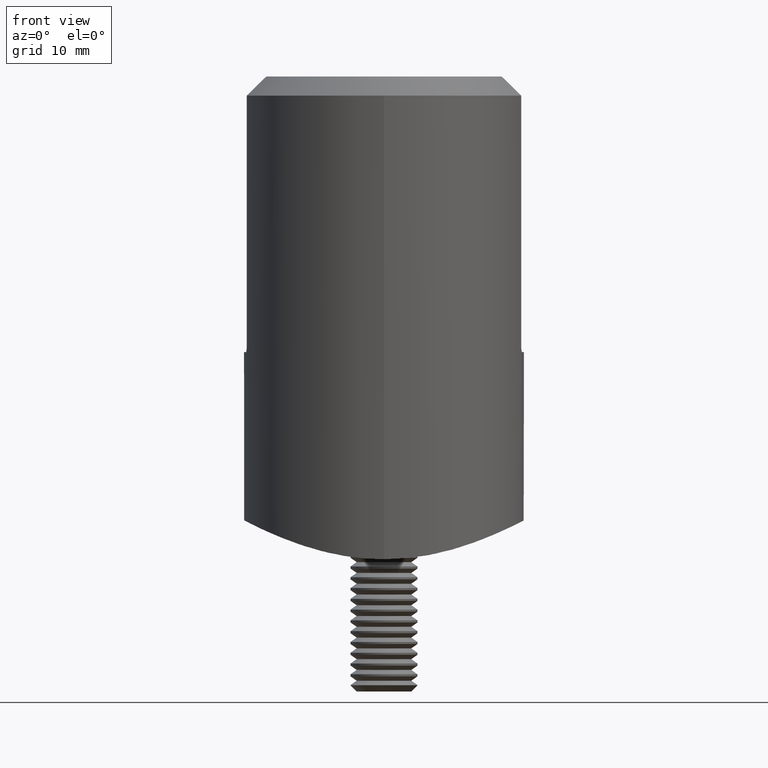
[diagram: clean part render]
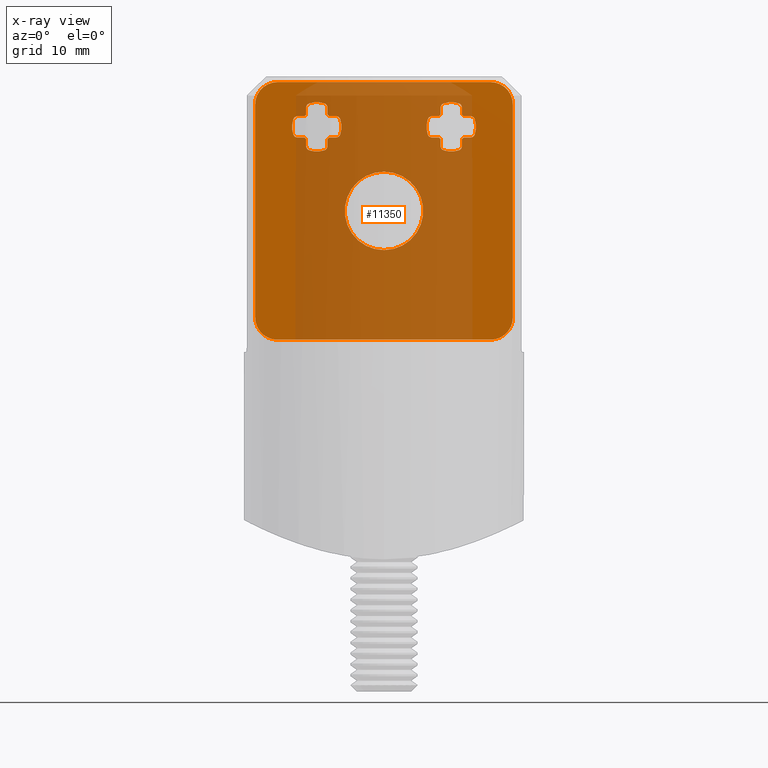
[diagram: x-ray — body ghosted, one internal face saturated and labeled with its STEP entity id]
A machine part, front view, then the same camera in x-ray: the body is ghosted and one INTERNAL B-rep face — a face not visible from any outside direction — is saturated and labeled: STEP entity #11350.
In plain terms, the highlighted planar face has unit normal (0, 1, 0).
Its self-contained STEP definition (entity closure, byte-faithful):
#63 = DIRECTION ( 'NONE',  ( 0.000000000000000000, 1.000000000000000000, 0.000000000000000000 ) ) ;
#143 = DIRECTION ( 'NONE',  ( 0.000000000000000000, 0.000000000000000000, -1.000000000000000000 ) ) ;
#152 = EDGE_CURVE ( 'NONE', #17768, #7842, #23332, .T. ) ;
#270 = CIRCLE ( 'NONE', #14753, 0.3999999999999993006 ) ;
#351 = EDGE_CURVE ( 'NONE', #15955, #3021, #2740, .T. ) ;
#361 = CARTESIAN_POINT ( 'NONE',  ( 6.000000000000002665, 1.000000000000000000, 7.499999999999996447 ) ) ;
#454 = AXIS2_PLACEMENT_3D ( 'NONE', #11058, #5607, #5447 ) ;
#476 = DIRECTION ( 'NONE',  ( -0.000000000000000000, -0.000000000000000000, -1.000000000000000000 ) ) ;
#605 = CARTESIAN_POINT ( 'NONE',  ( 6.550000000000002487, 1.000000000000000000, 9.213913650100257868 ) ) ;
#619 = DIRECTION ( 'NONE',  ( 0.000000000000000000, -1.000000000000000000, -0.000000000000000000 ) ) ;
#646 = CARTESIAN_POINT ( 'NONE',  ( -4.286086349899735914, 1.000000000000000000, 8.449999999999997513 ) ) ;
#681 = LINE ( 'NONE', #23740, #21289 ) ;
#692 = LINE ( 'NONE', #21756, #2717 ) ;
#724 = VERTEX_POINT ( 'NONE', #21250 ) ;
#802 = ORIENTED_EDGE ( 'NONE', *, *, #351, .T. ) ;
#806 = FACE_BOUND ( 'NONE', #2316, .T. ) ;
#907 = VERTEX_POINT ( 'NONE', #14921 ) ;
#930 = CIRCLE ( 'NONE', #11776, 0.4000000000000001887 ) ;
#977 = CIRCLE ( 'NONE', #3917, 2.200000000000000622 ) ;
#1031 = VERTEX_POINT ( 'NONE', #13823 ) ;
#1073 = CARTESIAN_POINT ( 'NONE',  ( -6.950000000000002842, 1.000000000000000000, 8.499999999999994671 ) ) ;
#1135 = VERTEX_POINT ( 'NONE', #1782 ) ;
#1206 = DIRECTION ( 'NONE',  ( -0.000000000000000000, 1.000000000000000000, 0.000000000000000000 ) ) ;
#1209 = DIRECTION ( 'NONE',  ( -0.000000000000000000, 1.000000000000000000, 0.000000000000000000 ) ) ;
#1314 = VECTOR ( 'NONE', #23729, 1000.000000000000000 ) ;
#1381 = VECTOR ( 'NONE', #23610, 1000.000000000000000 ) ;
#1444 = AXIS2_PLACEMENT_3D ( 'NONE', #15421, #13354, #6360 ) ;
#1458 = CIRCLE ( 'NONE', #11847, 0.4000000000000001887 ) ;
#1497 = VERTEX_POINT ( 'NONE', #20976 ) ;
#1548 = VECTOR ( 'NONE', #14081, 1000.000000000000000 ) ;
#1628 = DIRECTION ( 'NONE',  ( -0.000000000000000000, 0.000000000000000000, -1.000000000000000000 ) ) ;
#1695 = DIRECTION ( 'NONE',  ( -0.000000000000000000, 1.000000000000000000, 0.000000000000000000 ) ) ;
#1710 = VERTEX_POINT ( 'NONE', #15487 ) ;
#1723 = DIRECTION ( 'NONE',  ( 0.000000000000000000, -1.000000000000000000, -0.000000000000000000 ) ) ;
#1727 = CIRCLE ( 'NONE', #13010, 2.200000000000000622 ) ;
#1741 = AXIS2_PLACEMENT_3D ( 'NONE', #16836, #15159, #9793 ) ;
#1782 = CARTESIAN_POINT ( 'NONE',  ( 4.904554884986475294, 1.000000000000000000, 8.449999999999997513 ) ) ;
#1953 = CIRCLE ( 'NONE', #23306, 2.200000000000000622 ) ;
#1976 = CIRCLE ( 'NONE', #454, 0.4000000000000001887 ) ;
#1984 = CARTESIAN_POINT ( 'NONE',  ( 5.050000000000002487, 1.000000000000000000, 6.404554884986466412 ) ) ;
#2206 = DIRECTION ( 'NONE',  ( 0.000000000000000000, 0.000000000000000000, -1.000000000000000000 ) ) ;
#2249 = VERTEX_POINT ( 'NONE', #23076 ) ;
#2259 = CARTESIAN_POINT ( 'NONE',  ( 4.286086349899742132, 1.000000000000000000, 6.949999999999995737 ) ) ;
#2285 = CARTESIAN_POINT ( 'NONE',  ( 9.500000000000000000, 1.000000000000000000, 9.499999999999998224 ) ) ;
#2316 = EDGE_LOOP ( 'NONE', ( #10845, #17783, #5789, #7614, #21557, #7415, #16310, #5440, #10051, #5235, #7598, #13632, #13991, #3364, #21801, #2637, #17481, #12154, #10840, #17694, #6635, #19427, #23317, #22947 ) ) ;
#2319 = ORIENTED_EDGE ( 'NONE', *, *, #5698, .T. ) ;
#2362 = DIRECTION ( 'NONE',  ( 0.000000000000000000, 0.000000000000000000, -1.000000000000000000 ) ) ;
#2442 = DIRECTION ( 'NONE',  ( 0.000000000000000000, 0.000000000000000000, -1.000000000000000000 ) ) ;
#2464 = CARTESIAN_POINT ( 'NONE',  ( 7.095445115011708381, 1.000000000000000000, 6.550000000001578115 ) ) ;
#2499 = DIRECTION ( 'NONE',  ( -0.000000000000000000, 1.000000000000000000, 0.000000000000000000 ) ) ;
#2505 = EDGE_CURVE ( 'NONE', #19221, #5168, #17093, .T. ) ;
#2634 = VERTEX_POINT ( 'NONE', #13495 ) ;
#2637 = ORIENTED_EDGE ( 'NONE', *, *, #3102, .T. ) ;
#2671 = DIRECTION ( 'NONE',  ( 0.000000000000000000, 0.000000000000000000, -1.000000000000000000 ) ) ;
#2717 = VECTOR ( 'NONE', #16556, 1000.000000000000000 ) ;
#2740 = LINE ( 'NONE', #16716, #23605 ) ;
#2800 = FACE_BOUND ( 'NONE', #4874, .T. ) ;
#2835 = EDGE_CURVE ( 'NONE', #10113, #14089, #8512, .T. ) ;
#2859 = CARTESIAN_POINT ( 'NONE',  ( 9.499999999999994671, 1.000000000000000000, -11.50000000000000000 ) ) ;
#2878 = CIRCLE ( 'NONE', #10164, 2.000000000000000000 ) ;
#2934 = ORIENTED_EDGE ( 'NONE', *, *, #11098, .F. ) ;
#2940 = CIRCLE ( 'NONE', #11697, 0.4000000000000001887 ) ;
#2968 = CARTESIAN_POINT ( 'NONE',  ( -3.905216649877455204, 1.000000000000000000, 8.172222222222217169 ) ) ;
#3001 = DIRECTION ( 'NONE',  ( 0.000000000000000000, 0.000000000000000000, -1.000000000000000000 ) ) ;
#3021 = VERTEX_POINT ( 'NONE', #16645 ) ;
#3102 = EDGE_CURVE ( 'NONE', #11791, #22283, #5598, .T. ) ;
#3345 = CARTESIAN_POINT ( 'NONE',  ( -5.050000000000002487, 1.000000000000000000, 8.595445115013525594 ) ) ;
#3364 = ORIENTED_EDGE ( 'NONE', *, *, #3947, .T. ) ;
#3431 = CARTESIAN_POINT ( 'NONE',  ( -9.500000000000000000, 1.000000000000000000, 9.499999999999996447 ) ) ;
#3446 = DIRECTION ( 'NONE',  ( -6.263226980648714405E-16, 0.000000000000000000, -1.000000000000000000 ) ) ;
#3486 = EDGE_CURVE ( 'NONE', #11502, #17501, #23606, .T. ) ;
#3504 = CARTESIAN_POINT ( 'NONE',  ( 5.050000000000006928, 1.000000000000000000, 3.162929625227602515E-15 ) ) ;
#3611 = VECTOR ( 'NONE', #10241, 1000.000000000000000 ) ;
#3646 = DIRECTION ( 'NONE',  ( 0.000000000000000000, -1.000000000000000000, -0.000000000000000000 ) ) ;
#3749 = VERTEX_POINT ( 'NONE', #6145 ) ;
#3784 = VERTEX_POINT ( 'NONE', #5450 ) ;
#3851 = CARTESIAN_POINT ( 'NONE',  ( -7.095445115011707493, 1.000000000000000000, 8.449999999998414779 ) ) ;
#3862 = ORIENTED_EDGE ( 'NONE', *, *, #15291, .T. ) ;
#3917 = AXIS2_PLACEMENT_3D ( 'NONE', #22135, #3646, #13108 ) ;
#3947 = EDGE_CURVE ( 'NONE', #9984, #9804, #15928, .T. ) ;
#4004 = VECTOR ( 'NONE', #3446, 1000.000000000000000 ) ;
#4014 = DIRECTION ( 'NONE',  ( 0.000000000000000000, 0.000000000000000000, -1.000000000000000000 ) ) ;
#4051 = DIRECTION ( 'NONE',  ( -1.508455196501571429E-16, 0.000000000000000000, -1.000000000000000000 ) ) ;
#4172 = VERTEX_POINT ( 'NONE', #6732 ) ;
#4254 = EDGE_CURVE ( 'NONE', #6161, #907, #7361, .T. ) ;
#4260 = DIRECTION ( 'NONE',  ( 0.000000000000000000, 0.000000000000000000, -1.000000000000000000 ) ) ;
#4278 = ORIENTED_EDGE ( 'NONE', *, *, #12117, .T. ) ;
#4279 = EDGE_CURVE ( 'NONE', #8878, #12637, #19647, .T. ) ;
#4294 = CARTESIAN_POINT ( 'NONE',  ( -4.904554884988297836, 1.000000000000000000, 8.449999999998414779 ) ) ;
#4299 = EDGE_CURVE ( 'NONE', #3749, #3749, #5591, .T. ) ;
#4330 = DIRECTION ( 'NONE',  ( 0.000000000000000000, -1.000000000000000000, -0.000000000000000000 ) ) ;
#4355 = EDGE_CURVE ( 'NONE', #8878, #11502, #15075, .T. ) ;
#4359 = DIRECTION ( 'NONE',  ( 0.000000000000000000, 0.000000000000000000, -1.000000000000000000 ) ) ;
#4364 = DIRECTION ( 'NONE',  ( -6.263226980648714405E-16, -0.000000000000000000, 1.000000000000000000 ) ) ;
#4431 = CIRCLE ( 'NONE', #1444, 1.450000000000001732 ) ;
#4433 = EDGE_CURVE ( 'NONE', #6485, #5228, #15351, .T. ) ;
#4446 = CARTESIAN_POINT ( 'NONE',  ( 6.949999999998421885, 1.000000000000000000, 6.404554884988290731 ) ) ;
#4504 = EDGE_CURVE ( 'NONE', #9804, #11791, #4431, .T. ) ;
#4594 = CARTESIAN_POINT ( 'NONE',  ( 6.950000000000008171, 1.000000000000000000, 4.352942751550861476E-15 ) ) ;
#4598 = VECTOR ( 'NONE', #11902, 1000.000000000000000 ) ;
#4631 = AXIS2_PLACEMENT_3D ( 'NONE', #18499, #12900, #9373 ) ;
#4648 = VECTOR ( 'NONE', #9880, 1000.000000000000000 ) ;
#4660 = ORIENTED_EDGE ( 'NONE', *, *, #7124, .T. ) ;
#4711 = VECTOR ( 'NONE', #14156, 1000.000000000000000 ) ;
#4765 = AXIS2_PLACEMENT_3D ( 'NONE', #2285, #11647, #2362 ) ;
#4774 = CARTESIAN_POINT ( 'NONE',  ( -6.000000000000002665, 1.000000000000000000, 7.499999999999996447 ) ) ;
#4874 = EDGE_LOOP ( 'NONE', ( #7815, #14663, #17765, #9570, #18141, #9776, #19957, #10071, #13438, #3862, #21719, #6243, #13024, #2319, #2934, #15623, #4278, #7554, #14394, #5076, #20914, #9192, #22528, #6561 ) ) ;
#4942 = AXIS2_PLACEMENT_3D ( 'NONE', #20346, #16514, #21938 ) ;
#4970 = LINE ( 'NONE', #12594, #7589 ) ;
#5061 = VERTEX_POINT ( 'NONE', #2968 ) ;
#5076 = ORIENTED_EDGE ( 'NONE', *, *, #9607, .T. ) ;
#5168 = VERTEX_POINT ( 'NONE', #3345 ) ;
#5176 = CIRCLE ( 'NONE', #21502, 0.3999999999999993006 ) ;
#5214 = CARTESIAN_POINT ( 'NONE',  ( 11.50000000000000000, 1.000000000000000000, 9.499999999999998224 ) ) ;
#5228 = VERTEX_POINT ( 'NONE', #21981 ) ;
#5235 = ORIENTED_EDGE ( 'NONE', *, *, #4433, .T. ) ;
#5291 = VECTOR ( 'NONE', #18061, 1000.000000000000000 ) ;
#5317 = CARTESIAN_POINT ( 'NONE',  ( -6.672222222222226939, 1.000000000000000000, 5.405216649877457868 ) ) ;
#5392 = CARTESIAN_POINT ( 'NONE',  ( 7.713913650100264086, 1.000000000000000000, 8.449999999999997513 ) ) ;
#5402 = AXIS2_PLACEMENT_3D ( 'NONE', #15912, #15754, #23257 ) ;
#5440 = ORIENTED_EDGE ( 'NONE', *, *, #14173, .T. ) ;
#5447 = DIRECTION ( 'NONE',  ( 0.000000000000000000, 0.000000000000000000, -1.000000000000000000 ) ) ;
#5450 = CARTESIAN_POINT ( 'NONE',  ( 8.094783350122543908, 1.000000000000000000, 6.827777777777773061 ) ) ;
#5452 = VERTEX_POINT ( 'NONE', #19121 ) ;
#5534 = ORIENTED_EDGE ( 'NONE', *, *, #9688, .T. ) ;
#5591 = CIRCLE ( 'NONE', #15262, 3.499999999999999556 ) ;
#5598 = LINE ( 'NONE', #19207, #9334 ) ;
#5607 = DIRECTION ( 'NONE',  ( -0.000000000000000000, 1.000000000000000000, 0.000000000000000000 ) ) ;
#5617 = EDGE_CURVE ( 'NONE', #23518, #907, #10726, .T. ) ;
#5698 = EDGE_CURVE ( 'NONE', #1031, #21527, #13901, .T. ) ;
#5763 = LINE ( 'NONE', #9120, #7515 ) ;
#5789 = ORIENTED_EDGE ( 'NONE', *, *, #16688, .T. ) ;
#5793 = CIRCLE ( 'NONE', #14610, 0.4000000000000001887 ) ;
#5853 = CARTESIAN_POINT ( 'NONE',  ( -8.094783350122540355, 1.000000000000000000, 8.172222222222217169 ) ) ;
#5901 = DIRECTION ( 'NONE',  ( 0.000000000000000000, -1.000000000000000000, -0.000000000000000000 ) ) ;
#5945 = EDGE_CURVE ( 'NONE', #12138, #23612, #7304, .T. ) ;
#6113 = CIRCLE ( 'NONE', #4631, 0.4000000000000001887 ) ;
#6145 = CARTESIAN_POINT ( 'NONE',  ( 0.000000000000000000, 1.000000000000000000, 3.499999999999999556 ) ) ;
#6161 = VERTEX_POINT ( 'NONE', #9123 ) ;
#6228 = EDGE_CURVE ( 'NONE', #7842, #17735, #23583, .T. ) ;
#6243 = ORIENTED_EDGE ( 'NONE', *, *, #19580, .T. ) ;
#6295 = CARTESIAN_POINT ( 'NONE',  ( -11.50000000000000355, 1.000000000000000000, -11.49999999999998934 ) ) ;
#6360 = DIRECTION ( 'NONE',  ( 0.000000000000000000, 0.000000000000000000, -1.000000000000000000 ) ) ;
#6485 = VERTEX_POINT ( 'NONE', #1984 ) ;
#6543 = EDGE_CURVE ( 'NONE', #3784, #1497, #977, .T. ) ;
#6561 = ORIENTED_EDGE ( 'NONE', *, *, #6228, .T. ) ;
#6633 = CARTESIAN_POINT ( 'NONE',  ( -4.904554884986473517, 1.000000000000000000, 6.549999999999997158 ) ) ;
#6635 = ORIENTED_EDGE ( 'NONE', *, *, #9719, .T. ) ;
#6712 = CARTESIAN_POINT ( 'NONE',  ( -5.000000000000003553, 1.000000000000000000, 8.449999999999997513 ) ) ;
#6732 = CARTESIAN_POINT ( 'NONE',  ( 6.949999999998421885, 1.000000000000000000, 8.595445115011701276 ) ) ;
#6776 = CIRCLE ( 'NONE', #10442, 0.4000000000000001887 ) ;
#6843 = CARTESIAN_POINT ( 'NONE',  ( -11.50000000000000355, 1.000000000000000000, -9.499999999999987566 ) ) ;
#6869 = DIRECTION ( 'NONE',  ( -0.000000000000000000, 1.000000000000000000, 0.000000000000000000 ) ) ;
#6988 = AXIS2_PLACEMENT_3D ( 'NONE', #22183, #9948, #8124 ) ;
#7124 = EDGE_CURVE ( 'NONE', #7473, #19758, #22701, .T. ) ;
#7125 = LINE ( 'NONE', #12364, #1381 ) ;
#7252 = CARTESIAN_POINT ( 'NONE',  ( -5.450000000000001954, 1.000000000000000000, 9.213913650100261421 ) ) ;
#7304 = CIRCLE ( 'NONE', #16332, 0.4000000000000001887 ) ;
#7339 = CARTESIAN_POINT ( 'NONE',  ( 6.000000000000002665, 1.000000000000000000, 7.499999999999996447 ) ) ;
#7361 = CIRCLE ( 'NONE', #7601, 2.200000000000000622 ) ;
#7406 = CARTESIAN_POINT ( 'NONE',  ( -6.000000000000002665, 1.000000000000000000, 7.499999999999996447 ) ) ;
#7415 = ORIENTED_EDGE ( 'NONE', *, *, #4254, .T. ) ;
#7473 = VERTEX_POINT ( 'NONE', #12739 ) ;
#7481 = CARTESIAN_POINT ( 'NONE',  ( 5.327777777777780166, 1.000000000000000000, 5.405216649877454316 ) ) ;
#7515 = VECTOR ( 'NONE', #21986, 1000.000000000000000 ) ;
#7554 = ORIENTED_EDGE ( 'NONE', *, *, #14009, .T. ) ;
#7564 = AXIS2_PLACEMENT_3D ( 'NONE', #4774, #10398, #14017 ) ;
#7579 = DIRECTION ( 'NONE',  ( 0.000000000000000000, -1.000000000000000000, -0.000000000000000000 ) ) ;
#7589 = VECTOR ( 'NONE', #1628, 1000.000000000000000 ) ;
#7598 = ORIENTED_EDGE ( 'NONE', *, *, #19681, .F. ) ;
#7601 = AXIS2_PLACEMENT_3D ( 'NONE', #16316, #14566, #11111 ) ;
#7614 = ORIENTED_EDGE ( 'NONE', *, *, #20970, .T. ) ;
#7689 = FACE_BOUND ( 'NONE', #23668, .T. ) ;
#7697 = CARTESIAN_POINT ( 'NONE',  ( -7.713913650100259645, 1.000000000000000000, 8.049999999999997158 ) ) ;
#7713 = ORIENTED_EDGE ( 'NONE', *, *, #20209, .T. ) ;
#7764 = DIRECTION ( 'NONE',  ( 0.000000000000000000, 0.000000000000000000, -1.000000000000000000 ) ) ;
#7815 = ORIENTED_EDGE ( 'NONE', *, *, #16506, .F. ) ;
#7826 = DIRECTION ( 'NONE',  ( 0.000000000000000000, -1.000000000000000000, -0.000000000000000000 ) ) ;
#7842 = VERTEX_POINT ( 'NONE', #15752 ) ;
#7914 = DIRECTION ( 'NONE',  ( 0.000000000000000000, -1.000000000000000000, -0.000000000000000000 ) ) ;
#8124 = DIRECTION ( 'NONE',  ( 0.000000000000000000, 0.000000000000000000, -1.000000000000000000 ) ) ;
#8183 = EDGE_CURVE ( 'NONE', #17417, #5061, #930, .T. ) ;
#8342 = VERTEX_POINT ( 'NONE', #22145 ) ;
#8362 = AXIS2_PLACEMENT_3D ( 'NONE', #16634, #14807, #143 ) ;
#8512 = LINE ( 'NONE', #23176, #3611 ) ;
#8541 = DIRECTION ( 'NONE',  ( -0.000000000000000000, 1.000000000000000000, 0.000000000000000000 ) ) ;
#8560 = VERTEX_POINT ( 'NONE', #2859 ) ;
#8670 = VERTEX_POINT ( 'NONE', #19651 ) ;
#8708 = CARTESIAN_POINT ( 'NONE',  ( -6.550000000000002487, 1.000000000000000000, 9.213913650100257868 ) ) ;
#8769 = EDGE_CURVE ( 'NONE', #14568, #1710, #1727, .T. ) ;
#8787 = AXIS2_PLACEMENT_3D ( 'NONE', #16387, #21891, #9024 ) ;
#8878 = VERTEX_POINT ( 'NONE', #15336 ) ;
#8932 = EDGE_CURVE ( 'NONE', #10275, #13300, #13787, .T. ) ;
#9008 = EDGE_CURVE ( 'NONE', #11397, #5452, #4970, .T. ) ;
#9024 = DIRECTION ( 'NONE',  ( 4.336808689942015369E-15, 0.000000000000000000, -1.000000000000000000 ) ) ;
#9120 = CARTESIAN_POINT ( 'NONE',  ( -11.50000000000000000, 1.000000000000000000, 11.49999999999999645 ) ) ;
#9123 = CARTESIAN_POINT ( 'NONE',  ( 3.905216649877460977, 1.000000000000000000, 8.172222222222217169 ) ) ;
#9191 = CARTESIAN_POINT ( 'NONE',  ( -6.000000000000002665, 1.000000000000000000, 7.499999999999996447 ) ) ;
#9192 = ORIENTED_EDGE ( 'NONE', *, *, #14876, .T. ) ;
#9282 = CARTESIAN_POINT ( 'NONE',  ( -5.050000000000002487, 1.000000000000000000, 6.499999999999998224 ) ) ;
#9334 = VECTOR ( 'NONE', #15608, 1000.000000000000000 ) ;
#9351 = CARTESIAN_POINT ( 'NONE',  ( -7.713913650100257868, 1.000000000000000000, 6.549999999999997158 ) ) ;
#9352 = CIRCLE ( 'NONE', #21033, 2.000000000000000000 ) ;
#9373 = DIRECTION ( 'NONE',  ( 0.000000000000000000, 0.000000000000000000, -1.000000000000000000 ) ) ;
#9397 = ORIENTED_EDGE ( 'NONE', *, *, #12829, .T. ) ;
#9570 = ORIENTED_EDGE ( 'NONE', *, *, #4355, .T. ) ;
#9572 = CIRCLE ( 'NONE', #13191, 2.200000000000000622 ) ;
#9607 = EDGE_CURVE ( 'NONE', #16026, #23612, #9572, .T. ) ;
#9688 = EDGE_CURVE ( 'NONE', #8560, #16569, #16573, .T. ) ;
#9719 = EDGE_CURVE ( 'NONE', #14089, #4172, #12284, .T. ) ;
#9776 = ORIENTED_EDGE ( 'NONE', *, *, #17307, .T. ) ;
#9793 = DIRECTION ( 'NONE',  ( -8.673617379884035472E-16, 0.000000000000000000, -1.000000000000000000 ) ) ;
#9804 = VERTEX_POINT ( 'NONE', #4446 ) ;
#9835 = CARTESIAN_POINT ( 'NONE',  ( -6.949999999998421885, 1.000000000000000000, 8.595445115011701276 ) ) ;
#9880 = DIRECTION ( 'NONE',  ( 1.000000000000000000, 0.000000000000000000, 7.542275982507857147E-17 ) ) ;
#9948 = DIRECTION ( 'NONE',  ( 0.000000000000000000, -1.000000000000000000, -0.000000000000000000 ) ) ;
#9984 = VERTEX_POINT ( 'NONE', #17691 ) ;
#10020 = CIRCLE ( 'NONE', #4765, 2.000000000000000000 ) ;
#10051 = ORIENTED_EDGE ( 'NONE', *, *, #18157, .T. ) ;
#10071 = ORIENTED_EDGE ( 'NONE', *, *, #22028, .T. ) ;
#10113 = VERTEX_POINT ( 'NONE', #5392 ) ;
#10124 = EDGE_LOOP ( 'NONE', ( #5534, #11007, #13800, #7713, #4660, #16282, #802, #9397 ) ) ;
#10140 = CARTESIAN_POINT ( 'NONE',  ( -5.999999999999997335, 1.000000000000000000, 7.499999999999998224 ) ) ;
#10164 = AXIS2_PLACEMENT_3D ( 'NONE', #3431, #1695, #20005 ) ;
#10205 = VECTOR ( 'NONE', #22040, 1000.000000000000000 ) ;
#10241 = DIRECTION ( 'NONE',  ( -1.000000000000000000, 0.000000000000000000, 0.000000000000000000 ) ) ;
#10275 = VERTEX_POINT ( 'NONE', #13506 ) ;
#10398 = DIRECTION ( 'NONE',  ( 0.000000000000000000, -1.000000000000000000, -0.000000000000000000 ) ) ;
#10442 = AXIS2_PLACEMENT_3D ( 'NONE', #17249, #2499, #13418 ) ;
#10446 = DIRECTION ( 'NONE',  ( -0.000000000000000000, 1.000000000000000000, 0.000000000000000000 ) ) ;
#10506 = VERTEX_POINT ( 'NONE', #22091 ) ;
#10543 = EDGE_CURVE ( 'NONE', #10113, #1497, #1976, .T. ) ;
#10726 = CIRCLE ( 'NONE', #11898, 0.4000000000000001887 ) ;
#10839 = DIRECTION ( 'NONE',  ( 0.000000000000000000, 0.000000000000000000, -1.000000000000000000 ) ) ;
#10840 = ORIENTED_EDGE ( 'NONE', *, *, #10543, .F. ) ;
#10845 = ORIENTED_EDGE ( 'NONE', *, *, #17470, .F. ) ;
#10941 = VERTEX_POINT ( 'NONE', #16647 ) ;
#10965 = CIRCLE ( 'NONE', #8787, 0.4000000000000001887 ) ;
#11007 = ORIENTED_EDGE ( 'NONE', *, *, #22490, .T. ) ;
#11058 = CARTESIAN_POINT ( 'NONE',  ( 7.713913650100264086, 1.000000000000000000, 8.049999999999997158 ) ) ;
#11098 = EDGE_CURVE ( 'NONE', #10275, #21527, #23391, .T. ) ;
#11111 = DIRECTION ( 'NONE',  ( 0.000000000000000000, 0.000000000000000000, -1.000000000000000000 ) ) ;
#11330 = CARTESIAN_POINT ( 'NONE',  ( 0.000000000000000000, 1.000000000000000000, 0.000000000000000000 ) ) ;
#11350 = ADVANCED_FACE ( 'NONE', ( #806, #12838, #7689, #2800 ), #16935, .F. ) ;
#11397 = VERTEX_POINT ( 'NONE', #13594 ) ;
#11502 = VERTEX_POINT ( 'NONE', #16109 ) ;
#11525 = CIRCLE ( 'NONE', #14024, 1.450000000000001732 ) ;
#11569 = CARTESIAN_POINT ( 'NONE',  ( -5.999999999999997335, 1.000000000000000000, 7.499999999999998224 ) ) ;
#11580 = CARTESIAN_POINT ( 'NONE',  ( 6.000000000000002665, 1.000000000000000000, 7.499999999999996447 ) ) ;
#11647 = DIRECTION ( 'NONE',  ( -0.000000000000000000, 1.000000000000000000, 0.000000000000000000 ) ) ;
#11660 = CARTESIAN_POINT ( 'NONE',  ( -7.095445115013531812, 1.000000000000000000, 6.549999999999996270 ) ) ;
#11697 = AXIS2_PLACEMENT_3D ( 'NONE', #19342, #8541, #15735 ) ;
#11709 = AXIS2_PLACEMENT_3D ( 'NONE', #17096, #15100, #15025 ) ;
#11776 = AXIS2_PLACEMENT_3D ( 'NONE', #18013, #1209, #19760 ) ;
#11791 = VERTEX_POINT ( 'NONE', #2464 ) ;
#11847 = AXIS2_PLACEMENT_3D ( 'NONE', #23075, #10446, #3001 ) ;
#11898 = AXIS2_PLACEMENT_3D ( 'NONE', #2259, #13080, #4014 ) ;
#11902 = DIRECTION ( 'NONE',  ( -0.000000000000000000, -0.000000000000000000, 1.000000000000000000 ) ) ;
#12084 = DIRECTION ( 'NONE',  ( 2.602085213965210642E-15, 0.000000000000000000, -1.000000000000000000 ) ) ;
#12093 = LINE ( 'NONE', #4594, #13258 ) ;
#12117 = EDGE_CURVE ( 'NONE', #13300, #14646, #15096, .T. ) ;
#12138 = VERTEX_POINT ( 'NONE', #9351 ) ;
#12154 = ORIENTED_EDGE ( 'NONE', *, *, #6543, .T. ) ;
#12284 = CIRCLE ( 'NONE', #22658, 1.450000000000001732 ) ;
#12364 = CARTESIAN_POINT ( 'NONE',  ( 0.000000000000000000, 1.000000000000000000, 8.449999999999997513 ) ) ;
#12438 = EDGE_CURVE ( 'NONE', #6161, #2634, #6776, .T. ) ;
#12445 = AXIS2_PLACEMENT_3D ( 'NONE', #9191, #16469, #22213 ) ;
#12524 = DIRECTION ( 'NONE',  ( 0.000000000000000000, 0.000000000000000000, -1.000000000000000000 ) ) ;
#12594 = CARTESIAN_POINT ( 'NONE',  ( 5.050000000000002487, 1.000000000000000000, 8.499999999999994671 ) ) ;
#12637 = VERTEX_POINT ( 'NONE', #23357 ) ;
#12739 = CARTESIAN_POINT ( 'NONE',  ( -9.500000000000000000, 1.000000000000000000, 11.49999999999999645 ) ) ;
#12742 = CARTESIAN_POINT ( 'NONE',  ( 6.950000000000001954, 1.000000000000000000, 9.213913650100257868 ) ) ;
#12762 = VERTEX_POINT ( 'NONE', #12742 ) ;
#12829 = EDGE_CURVE ( 'NONE', #3021, #8560, #9352, .T. ) ;
#12838 = FACE_OUTER_BOUND ( 'NONE', #10124, .T. ) ;
#12900 = DIRECTION ( 'NONE',  ( -0.000000000000000000, 1.000000000000000000, 0.000000000000000000 ) ) ;
#12923 = DIRECTION ( 'NONE',  ( 0.000000000000000000, 0.000000000000000000, -1.000000000000000000 ) ) ;
#12970 = DIRECTION ( 'NONE',  ( 0.000000000000000000, 0.000000000000000000, 1.000000000000000000 ) ) ;
#13010 = AXIS2_PLACEMENT_3D ( 'NONE', #361, #7826, #4260 ) ;
#13024 = ORIENTED_EDGE ( 'NONE', *, *, #21078, .F. ) ;
#13080 = DIRECTION ( 'NONE',  ( -0.000000000000000000, 1.000000000000000000, 0.000000000000000000 ) ) ;
#13108 = DIRECTION ( 'NONE',  ( 0.000000000000000000, 0.000000000000000000, -1.000000000000000000 ) ) ;
#13191 = AXIS2_PLACEMENT_3D ( 'NONE', #22058, #5901, #7764 ) ;
#13258 = VECTOR ( 'NONE', #4364, 1000.000000000000000 ) ;
#13276 = CIRCLE ( 'NONE', #22948, 1.450000000000001732 ) ;
#13300 = VERTEX_POINT ( 'NONE', #9835 ) ;
#13354 = DIRECTION ( 'NONE',  ( 0.000000000000000000, -1.000000000000000000, -0.000000000000000000 ) ) ;
#13379 = DIRECTION ( 'NONE',  ( -0.000000000000000000, 1.000000000000000000, 0.000000000000000000 ) ) ;
#13418 = DIRECTION ( 'NONE',  ( 0.000000000000000000, 0.000000000000000000, -1.000000000000000000 ) ) ;
#13437 = DIRECTION ( 'NONE',  ( -0.000000000000000000, 1.000000000000000000, 0.000000000000000000 ) ) ;
#13438 = ORIENTED_EDGE ( 'NONE', *, *, #8183, .F. ) ;
#13495 = CARTESIAN_POINT ( 'NONE',  ( 4.286086349899742132, 1.000000000000000000, 8.449999999999997513 ) ) ;
#13506 = CARTESIAN_POINT ( 'NONE',  ( -6.950000000000001954, 1.000000000000000000, 9.213913650100257868 ) ) ;
#13594 = CARTESIAN_POINT ( 'NONE',  ( 5.050000000000002487, 1.000000000000000000, 9.213913650100257868 ) ) ;
#13632 = ORIENTED_EDGE ( 'NONE', *, *, #8769, .T. ) ;
#13656 = CARTESIAN_POINT ( 'NONE',  ( 6.000000000000002665, 1.000000000000000000, 7.499999999999996447 ) ) ;
#13787 = LINE ( 'NONE', #1073, #4004 ) ;
#13800 = ORIENTED_EDGE ( 'NONE', *, *, #18938, .T. ) ;
#13823 = CARTESIAN_POINT ( 'NONE',  ( -5.327777777777780166, 1.000000000000000000, 9.594783350122540355 ) ) ;
#13901 = CIRCLE ( 'NONE', #6988, 2.200000000000000622 ) ;
#13952 = CARTESIAN_POINT ( 'NONE',  ( 9.499999999999996447, 1.000000000000000000, -9.500000000000000000 ) ) ;
#13991 = ORIENTED_EDGE ( 'NONE', *, *, #21209, .F. ) ;
#14009 = EDGE_CURVE ( 'NONE', #14646, #16908, #15057, .T. ) ;
#14017 = DIRECTION ( 'NONE',  ( 0.000000000000000000, 0.000000000000000000, -1.000000000000000000 ) ) ;
#14024 = AXIS2_PLACEMENT_3D ( 'NONE', #7339, #1723, #10839 ) ;
#14081 = DIRECTION ( 'NONE',  ( -1.000000000000000000, 0.000000000000000000, 0.000000000000000000 ) ) ;
#14089 = VERTEX_POINT ( 'NONE', #17613 ) ;
#14144 = CIRCLE ( 'NONE', #5402, 0.3999999999999993006 ) ;
#14156 = DIRECTION ( 'NONE',  ( -1.000000000000000000, -0.000000000000000000, -0.000000000000000000 ) ) ;
#14173 = EDGE_CURVE ( 'NONE', #23518, #724, #22471, .T. ) ;
#14185 = CARTESIAN_POINT ( 'NONE',  ( -8.094783350122538579, 1.000000000000000000, 6.827777777777773061 ) ) ;
#14229 = VERTEX_POINT ( 'NONE', #16451 ) ;
#14352 = ORIENTED_EDGE ( 'NONE', *, *, #4299, .F. ) ;
#14394 = ORIENTED_EDGE ( 'NONE', *, *, #15013, .F. ) ;
#14566 = DIRECTION ( 'NONE',  ( 0.000000000000000000, -1.000000000000000000, -0.000000000000000000 ) ) ;
#14568 = VERTEX_POINT ( 'NONE', #7481 ) ;
#14610 = AXIS2_PLACEMENT_3D ( 'NONE', #22567, #15154, #18836 ) ;
#14630 = AXIS2_PLACEMENT_3D ( 'NONE', #7406, #7579, #12923 ) ;
#14646 = VERTEX_POINT ( 'NONE', #3851 ) ;
#14663 = ORIENTED_EDGE ( 'NONE', *, *, #20750, .T. ) ;
#14753 = AXIS2_PLACEMENT_3D ( 'NONE', #605, #13437, #2442 ) ;
#14807 = DIRECTION ( 'NONE',  ( -0.000000000000000000, 1.000000000000000000, 0.000000000000000000 ) ) ;
#14876 = EDGE_CURVE ( 'NONE', #12138, #17768, #692, .T. ) ;
#14921 = CARTESIAN_POINT ( 'NONE',  ( 3.905216649877461421, 1.000000000000000000, 6.827777777777773061 ) ) ;
#14976 = CIRCLE ( 'NONE', #4942, 2.200000000000000622 ) ;
#15013 = EDGE_CURVE ( 'NONE', #16026, #16908, #17023, .T. ) ;
#15025 = DIRECTION ( 'NONE',  ( 0.000000000000000000, 0.000000000000000000, -1.000000000000000000 ) ) ;
#15057 = LINE ( 'NONE', #21417, #4711 ) ;
#15075 = LINE ( 'NONE', #9282, #1314 ) ;
#15096 = CIRCLE ( 'NONE', #12445, 1.450000000000001732 ) ;
#15100 = DIRECTION ( 'NONE',  ( 0.000000000000000000, -1.000000000000000000, -0.000000000000000000 ) ) ;
#15154 = DIRECTION ( 'NONE',  ( -0.000000000000000000, 1.000000000000000000, 0.000000000000000000 ) ) ;
#15159 = DIRECTION ( 'NONE',  ( -0.000000000000000000, 1.000000000000000000, 0.000000000000000000 ) ) ;
#15262 = AXIS2_PLACEMENT_3D ( 'NONE', #18168, #63, #12970 ) ;
#15291 = EDGE_CURVE ( 'NONE', #17417, #19221, #15585, .T. ) ;
#15336 = CARTESIAN_POINT ( 'NONE',  ( -5.050000000000003375, 1.000000000000000000, 5.786086349899735026 ) ) ;
#15351 = LINE ( 'NONE', #3504, #10205 ) ;
#15421 = CARTESIAN_POINT ( 'NONE',  ( 6.000000000000002665, 1.000000000000000000, 7.499999999999996447 ) ) ;
#15487 = CARTESIAN_POINT ( 'NONE',  ( 6.672222222222226939, 1.000000000000000000, 5.405216649877455204 ) ) ;
#15585 = LINE ( 'NONE', #6712, #1548 ) ;
#15608 = DIRECTION ( 'NONE',  ( 1.000000000000000000, -0.000000000000000000, 6.263226980648714405E-16 ) ) ;
#15623 = ORIENTED_EDGE ( 'NONE', *, *, #8932, .T. ) ;
#15650 = VECTOR ( 'NONE', #20426, 1000.000000000000000 ) ;
#15735 = DIRECTION ( 'NONE',  ( 0.000000000000000000, 0.000000000000000000, -1.000000000000000000 ) ) ;
#15752 = CARTESIAN_POINT ( 'NONE',  ( -6.949999999998421885, 1.000000000000000000, 6.404554884988290731 ) ) ;
#15754 = DIRECTION ( 'NONE',  ( -0.000000000000000000, 1.000000000000000000, 0.000000000000000000 ) ) ;
#15912 = CARTESIAN_POINT ( 'NONE',  ( 5.450000000000001954, 1.000000000000000000, 9.213913650100257868 ) ) ;
#15928 = LINE ( 'NONE', #22176, #15650 ) ;
#15955 = VERTEX_POINT ( 'NONE', #5214 ) ;
#16026 = VERTEX_POINT ( 'NONE', #5853 ) ;
#16109 = CARTESIAN_POINT ( 'NONE',  ( -5.050000000001583444, 1.000000000000000000, 6.404554884988290731 ) ) ;
#16167 = DIRECTION ( 'NONE',  ( 0.000000000000000000, 0.000000000000000000, -1.000000000000000000 ) ) ;
#16243 = DIRECTION ( 'NONE',  ( -0.000000000000000000, 1.000000000000000000, 0.000000000000000000 ) ) ;
#16282 = ORIENTED_EDGE ( 'NONE', *, *, #20581, .T. ) ;
#16300 = CARTESIAN_POINT ( 'NONE',  ( -6.950000000000002842, 1.000000000000000000, 5.786086349899738579 ) ) ;
#16310 = ORIENTED_EDGE ( 'NONE', *, *, #5617, .F. ) ;
#16316 = CARTESIAN_POINT ( 'NONE',  ( 6.000000000000002665, 1.000000000000000000, 7.499999999999996447 ) ) ;
#16326 = CARTESIAN_POINT ( 'NONE',  ( -7.713913650100257868, 1.000000000000000000, 6.949999999999995737 ) ) ;
#16332 = AXIS2_PLACEMENT_3D ( 'NONE', #16326, #16243, #16167 ) ;
#16370 = CARTESIAN_POINT ( 'NONE',  ( 5.000000000000003553, 1.000000000000000000, 6.549999999999997158 ) ) ;
#16387 = CARTESIAN_POINT ( 'NONE',  ( -4.286086349899737691, 1.000000000000000000, 6.949999999999995737 ) ) ;
#16451 = CARTESIAN_POINT ( 'NONE',  ( -4.286086349899737691, 1.000000000000000000, 6.549999999999997158 ) ) ;
#16469 = DIRECTION ( 'NONE',  ( 0.000000000000000000, -1.000000000000000000, -0.000000000000000000 ) ) ;
#16506 = EDGE_CURVE ( 'NONE', #22970, #17735, #2940, .T. ) ;
#16514 = DIRECTION ( 'NONE',  ( 0.000000000000000000, -1.000000000000000000, -0.000000000000000000 ) ) ;
#16556 = DIRECTION ( 'NONE',  ( 1.000000000000000000, 0.000000000000000000, -6.263226980648714405E-16 ) ) ;
#16569 = VERTEX_POINT ( 'NONE', #19566 ) ;
#16573 = LINE ( 'NONE', #6295, #18308 ) ;
#16634 = CARTESIAN_POINT ( 'NONE',  ( -5.450000000000002842, 1.000000000000000000, 5.786086349899735026 ) ) ;
#16645 = CARTESIAN_POINT ( 'NONE',  ( 11.49999999999999645, 1.000000000000000000, -9.500000000000000000 ) ) ;
#16647 = CARTESIAN_POINT ( 'NONE',  ( -11.50000000000000000, 1.000000000000000000, 9.499999999999996447 ) ) ;
#16651 = DIRECTION ( 'NONE',  ( 1.000000000000000000, -0.000000000000000000, -0.000000000000000000 ) ) ;
#16688 = EDGE_CURVE ( 'NONE', #5452, #1135, #11525, .T. ) ;
#16716 = CARTESIAN_POINT ( 'NONE',  ( 11.50000000000000000, 1.000000000000000000, 11.49999999999999822 ) ) ;
#16720 = AXIS2_PLACEMENT_3D ( 'NONE', #11330, #16857, #20774 ) ;
#16766 = CARTESIAN_POINT ( 'NONE',  ( -11.50000000000000000, 1.000000000000000000, 11.49999999999999645 ) ) ;
#16836 = CARTESIAN_POINT ( 'NONE',  ( -9.500000000000003553, 1.000000000000000000, -9.499999999999987566 ) ) ;
#16857 = DIRECTION ( 'NONE',  ( 0.000000000000000000, -1.000000000000000000, 0.000000000000000000 ) ) ;
#16908 = VERTEX_POINT ( 'NONE', #20758 ) ;
#16935 = PLANE ( 'NONE',  #16720 ) ;
#17023 = CIRCLE ( 'NONE', #17215, 0.4000000000000001887 ) ;
#17093 = CIRCLE ( 'NONE', #14630, 1.450000000000001732 ) ;
#17096 = CARTESIAN_POINT ( 'NONE',  ( -6.000000000000002665, 1.000000000000000000, 7.499999999999996447 ) ) ;
#17215 = AXIS2_PLACEMENT_3D ( 'NONE', #7697, #13379, #20400 ) ;
#17249 = CARTESIAN_POINT ( 'NONE',  ( 4.286086349899742132, 1.000000000000000000, 8.049999999999997158 ) ) ;
#17259 = EDGE_CURVE ( 'NONE', #3784, #22283, #6113, .T. ) ;
#17307 = EDGE_CURVE ( 'NONE', #17501, #14229, #681, .T. ) ;
#17401 = CARTESIAN_POINT ( 'NONE',  ( 4.286086349899742132, 1.000000000000000000, 6.549999999999997158 ) ) ;
#17417 = VERTEX_POINT ( 'NONE', #646 ) ;
#17470 = EDGE_CURVE ( 'NONE', #11397, #8670, #14144, .T. ) ;
#17481 = ORIENTED_EDGE ( 'NONE', *, *, #17259, .F. ) ;
#17501 = VERTEX_POINT ( 'NONE', #6633 ) ;
#17511 = DIRECTION ( 'NONE',  ( 0.000000000000000000, -1.000000000000000000, -0.000000000000000000 ) ) ;
#17613 = CARTESIAN_POINT ( 'NONE',  ( 7.095445115013530923, 1.000000000000000000, 8.449999999999997513 ) ) ;
#17691 = CARTESIAN_POINT ( 'NONE',  ( 6.950000000000002842, 1.000000000000000000, 5.786086349899735026 ) ) ;
#17694 = ORIENTED_EDGE ( 'NONE', *, *, #2835, .T. ) ;
#17735 = VERTEX_POINT ( 'NONE', #16300 ) ;
#17765 = ORIENTED_EDGE ( 'NONE', *, *, #4279, .F. ) ;
#17768 = VERTEX_POINT ( 'NONE', #11660 ) ;
#17783 = ORIENTED_EDGE ( 'NONE', *, *, #9008, .T. ) ;
#18013 = CARTESIAN_POINT ( 'NONE',  ( -4.286086349899735914, 1.000000000000000000, 8.049999999999997158 ) ) ;
#18061 = DIRECTION ( 'NONE',  ( 1.000000000000000000, 0.000000000000000000, 0.000000000000000000 ) ) ;
#18141 = ORIENTED_EDGE ( 'NONE', *, *, #3486, .T. ) ;
#18157 = EDGE_CURVE ( 'NONE', #724, #6485, #13276, .T. ) ;
#18168 = CARTESIAN_POINT ( 'NONE',  ( 0.000000000000000000, 1.000000000000000000, 0.000000000000000000 ) ) ;
#18308 = VECTOR ( 'NONE', #22457, 1000.000000000000000 ) ;
#18335 = VERTEX_POINT ( 'NONE', #6843 ) ;
#18383 = LINE ( 'NONE', #20940, #4598 ) ;
#18499 = CARTESIAN_POINT ( 'NONE',  ( 7.713913650100264086, 1.000000000000000000, 6.949999999999995737 ) ) ;
#18749 = VECTOR ( 'NONE', #476, 1000.000000000000000 ) ;
#18836 = DIRECTION ( 'NONE',  ( 2.168404344971007685E-15, 0.000000000000000000, -1.000000000000000000 ) ) ;
#18938 = EDGE_CURVE ( 'NONE', #18335, #10941, #5763, .T. ) ;
#18968 = CARTESIAN_POINT ( 'NONE',  ( -6.950000000000002842, 1.000000000000000000, 0.000000000000000000 ) ) ;
#19121 = CARTESIAN_POINT ( 'NONE',  ( 5.050000000001583444, 1.000000000000000000, 8.595445115011701276 ) ) ;
#19184 = DIRECTION ( 'NONE',  ( 0.000000000000000000, 0.000000000000000000, -1.000000000000000000 ) ) ;
#19207 = CARTESIAN_POINT ( 'NONE',  ( -4.102413672324902132E-15, 1.000000000000000000, 6.549999999999991829 ) ) ;
#19221 = VERTEX_POINT ( 'NONE', #4294 ) ;
#19342 = CARTESIAN_POINT ( 'NONE',  ( -6.550000000000003375, 1.000000000000000000, 5.786086349899738579 ) ) ;
#19406 = CARTESIAN_POINT ( 'NONE',  ( 9.499999999999998224, 1.000000000000000000, 11.49999999999999822 ) ) ;
#19427 = ORIENTED_EDGE ( 'NONE', *, *, #22800, .T. ) ;
#19523 = CIRCLE ( 'NONE', #23170, 2.200000000000000622 ) ;
#19566 = CARTESIAN_POINT ( 'NONE',  ( -9.500000000000005329, 1.000000000000000000, -11.49999999999999112 ) ) ;
#19580 = EDGE_CURVE ( 'NONE', #5168, #8342, #18383, .T. ) ;
#19638 = CARTESIAN_POINT ( 'NONE',  ( 7.713913650100264086, 1.000000000000000000, 6.549999999999997158 ) ) ;
#19647 = CIRCLE ( 'NONE', #8362, 0.4000000000000001887 ) ;
#19651 = CARTESIAN_POINT ( 'NONE',  ( 5.327777777777778390, 1.000000000000000000, 9.594783350122536802 ) ) ;
#19681 = EDGE_CURVE ( 'NONE', #14568, #5228, #1458, .T. ) ;
#19758 = VERTEX_POINT ( 'NONE', #19406 ) ;
#19760 = DIRECTION ( 'NONE',  ( -2.168404344971007685E-15, 0.000000000000000000, -1.000000000000000000 ) ) ;
#19849 = CARTESIAN_POINT ( 'NONE',  ( -6.672222222222226051, 1.000000000000000000, 9.594783350122536802 ) ) ;
#19957 = ORIENTED_EDGE ( 'NONE', *, *, #21888, .F. ) ;
#20005 = DIRECTION ( 'NONE',  ( 0.000000000000000000, 0.000000000000000000, -1.000000000000000000 ) ) ;
#20209 = EDGE_CURVE ( 'NONE', #10941, #7473, #2878, .T. ) ;
#20346 = CARTESIAN_POINT ( 'NONE',  ( 6.000000000000002665, 1.000000000000000000, 7.499999999999996447 ) ) ;
#20400 = DIRECTION ( 'NONE',  ( 0.000000000000000000, 0.000000000000000000, -1.000000000000000000 ) ) ;
#20426 = DIRECTION ( 'NONE',  ( 0.000000000000000000, 0.000000000000000000, 1.000000000000000000 ) ) ;
#20581 = EDGE_CURVE ( 'NONE', #19758, #15955, #10020, .T. ) ;
#20675 = EDGE_CURVE ( 'NONE', #2249, #12762, #270, .T. ) ;
#20750 = EDGE_CURVE ( 'NONE', #22970, #12637, #1953, .T. ) ;
#20758 = CARTESIAN_POINT ( 'NONE',  ( -7.713913650100259645, 1.000000000000000000, 8.449999999999997513 ) ) ;
#20774 = DIRECTION ( 'NONE',  ( 0.000000000000000000, 0.000000000000000000, -1.000000000000000000 ) ) ;
#20914 = ORIENTED_EDGE ( 'NONE', *, *, #5945, .F. ) ;
#20940 = CARTESIAN_POINT ( 'NONE',  ( -5.050000000000002487, 1.000000000000000000, 0.000000000000000000 ) ) ;
#20970 = EDGE_CURVE ( 'NONE', #1135, #2634, #7125, .T. ) ;
#20976 = CARTESIAN_POINT ( 'NONE',  ( 8.094783350122545684, 1.000000000000000000, 8.172222222222217169 ) ) ;
#21033 = AXIS2_PLACEMENT_3D ( 'NONE', #13952, #1206, #12084 ) ;
#21078 = EDGE_CURVE ( 'NONE', #1031, #8342, #5176, .T. ) ;
#21209 = EDGE_CURVE ( 'NONE', #9984, #1710, #5793, .T. ) ;
#21250 = CARTESIAN_POINT ( 'NONE',  ( 4.904554884988296060, 1.000000000000000000, 6.550000000001578115 ) ) ;
#21289 = VECTOR ( 'NONE', #16651, 1000.000000000000000 ) ;
#21417 = CARTESIAN_POINT ( 'NONE',  ( 0.000000000000000000, 1.000000000000000000, 8.449999999999997513 ) ) ;
#21499 = DIRECTION ( 'NONE',  ( 0.000000000000000000, 0.000000000000000000, -1.000000000000000000 ) ) ;
#21502 = AXIS2_PLACEMENT_3D ( 'NONE', #7252, #21934, #12524 ) ;
#21527 = VERTEX_POINT ( 'NONE', #19849 ) ;
#21557 = ORIENTED_EDGE ( 'NONE', *, *, #12438, .F. ) ;
#21624 = AXIS2_PLACEMENT_3D ( 'NONE', #8708, #6869, #21499 ) ;
#21719 = ORIENTED_EDGE ( 'NONE', *, *, #2505, .T. ) ;
#21756 = CARTESIAN_POINT ( 'NONE',  ( -7.000000000000002665, 1.000000000000000000, 6.549999999999996270 ) ) ;
#21801 = ORIENTED_EDGE ( 'NONE', *, *, #4504, .T. ) ;
#21888 = EDGE_CURVE ( 'NONE', #10506, #14229, #10965, .T. ) ;
#21891 = DIRECTION ( 'NONE',  ( -0.000000000000000000, 1.000000000000000000, 0.000000000000000000 ) ) ;
#21934 = DIRECTION ( 'NONE',  ( -0.000000000000000000, 1.000000000000000000, 0.000000000000000000 ) ) ;
#21938 = DIRECTION ( 'NONE',  ( 0.000000000000000000, 0.000000000000000000, -1.000000000000000000 ) ) ;
#21981 = CARTESIAN_POINT ( 'NONE',  ( 5.050000000000003375, 1.000000000000000000, 5.786086349899735026 ) ) ;
#21986 = DIRECTION ( 'NONE',  ( 1.508455196501572415E-16, -0.000000000000000000, 1.000000000000000000 ) ) ;
#22028 = EDGE_CURVE ( 'NONE', #10506, #5061, #19523, .T. ) ;
#22040 = DIRECTION ( 'NONE',  ( 6.263226980648709475E-16, -0.000000000000000000, -1.000000000000000000 ) ) ;
#22058 = CARTESIAN_POINT ( 'NONE',  ( -5.999999999999997335, 1.000000000000000000, 7.499999999999998224 ) ) ;
#22091 = CARTESIAN_POINT ( 'NONE',  ( -3.905216649877456536, 1.000000000000000000, 6.827777777777773061 ) ) ;
#22117 = CIRCLE ( 'NONE', #1741, 2.000000000000000000 ) ;
#22135 = CARTESIAN_POINT ( 'NONE',  ( 6.000000000000002665, 1.000000000000000000, 7.499999999999996447 ) ) ;
#22145 = CARTESIAN_POINT ( 'NONE',  ( -5.050000000000002487, 1.000000000000000000, 9.213913650100261421 ) ) ;
#22176 = CARTESIAN_POINT ( 'NONE',  ( 6.950000000000002842, 1.000000000000000000, 6.499999999999997335 ) ) ;
#22183 = CARTESIAN_POINT ( 'NONE',  ( -5.999999999999997335, 1.000000000000000000, 7.499999999999998224 ) ) ;
#22213 = DIRECTION ( 'NONE',  ( 0.000000000000000000, 0.000000000000000000, -1.000000000000000000 ) ) ;
#22283 = VERTEX_POINT ( 'NONE', #19638 ) ;
#22367 = EDGE_CURVE ( 'NONE', #2249, #8670, #14976, .T. ) ;
#22457 = DIRECTION ( 'NONE',  ( -1.000000000000000000, -0.000000000000000000, 5.279593187755499510E-16 ) ) ;
#22471 = LINE ( 'NONE', #16370, #5291 ) ;
#22490 = EDGE_CURVE ( 'NONE', #16569, #18335, #22117, .T. ) ;
#22528 = ORIENTED_EDGE ( 'NONE', *, *, #152, .T. ) ;
#22567 = CARTESIAN_POINT ( 'NONE',  ( 6.550000000000003375, 1.000000000000000000, 5.786086349899735026 ) ) ;
#22658 = AXIS2_PLACEMENT_3D ( 'NONE', #11580, #619, #4359 ) ;
#22701 = LINE ( 'NONE', #16766, #4648 ) ;
#22800 = EDGE_CURVE ( 'NONE', #4172, #12762, #12093, .T. ) ;
#22947 = ORIENTED_EDGE ( 'NONE', *, *, #22367, .T. ) ;
#22948 = AXIS2_PLACEMENT_3D ( 'NONE', #13656, #4330, #2671 ) ;
#22970 = VERTEX_POINT ( 'NONE', #5317 ) ;
#23075 = CARTESIAN_POINT ( 'NONE',  ( 5.450000000000002842, 1.000000000000000000, 5.786086349899735026 ) ) ;
#23076 = CARTESIAN_POINT ( 'NONE',  ( 6.672222222222225163, 1.000000000000000000, 9.594783350122536802 ) ) ;
#23170 = AXIS2_PLACEMENT_3D ( 'NONE', #11569, #7914, #2206 ) ;
#23176 = CARTESIAN_POINT ( 'NONE',  ( 7.000000000000002665, 1.000000000000000000, 8.449999999999997513 ) ) ;
#23257 = DIRECTION ( 'NONE',  ( 0.000000000000000000, 0.000000000000000000, -1.000000000000000000 ) ) ;
#23306 = AXIS2_PLACEMENT_3D ( 'NONE', #10140, #17511, #19184 ) ;
#23317 = ORIENTED_EDGE ( 'NONE', *, *, #20675, .F. ) ;
#23332 = CIRCLE ( 'NONE', #7564, 1.450000000000001732 ) ;
#23357 = CARTESIAN_POINT ( 'NONE',  ( -5.327777777777781054, 1.000000000000000000, 5.405216649877454316 ) ) ;
#23391 = CIRCLE ( 'NONE', #21624, 0.3999999999999993006 ) ;
#23518 = VERTEX_POINT ( 'NONE', #17401 ) ;
#23583 = LINE ( 'NONE', #18968, #18749 ) ;
#23605 = VECTOR ( 'NONE', #4051, 1000.000000000000000 ) ;
#23606 = CIRCLE ( 'NONE', #11709, 1.450000000000001732 ) ;
#23610 = DIRECTION ( 'NONE',  ( -1.000000000000000000, -0.000000000000000000, -0.000000000000000000 ) ) ;
#23612 = VERTEX_POINT ( 'NONE', #14185 ) ;
#23668 = EDGE_LOOP ( 'NONE', ( #14352 ) ) ;
#23729 = DIRECTION ( 'NONE',  ( 6.263226980648709475E-16, 0.000000000000000000, 1.000000000000000000 ) ) ;
#23740 = CARTESIAN_POINT ( 'NONE',  ( 0.000000000000000000, 1.000000000000000000, 6.549999999999997158 ) ) ;